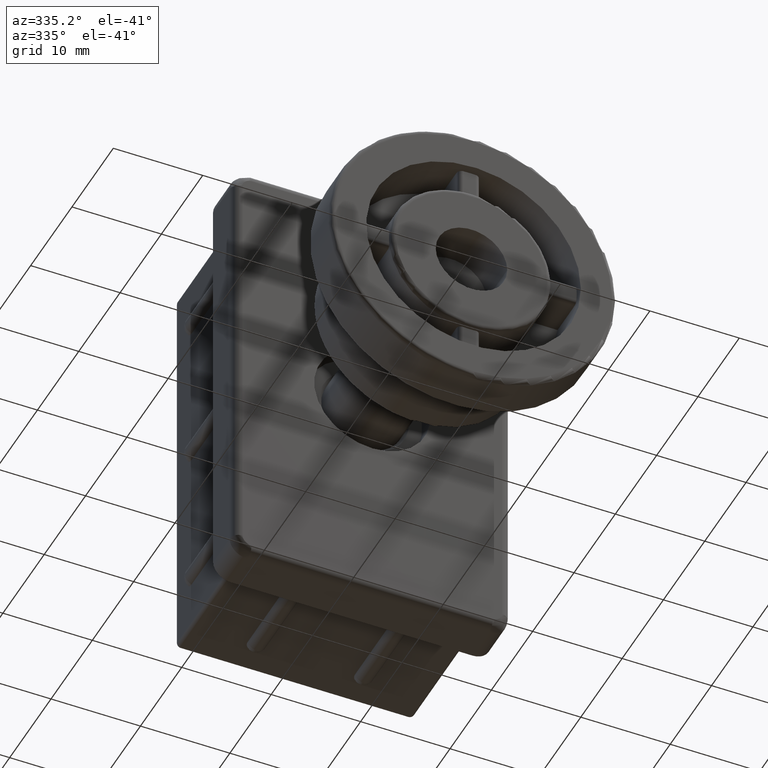
[diagram: clean part render]
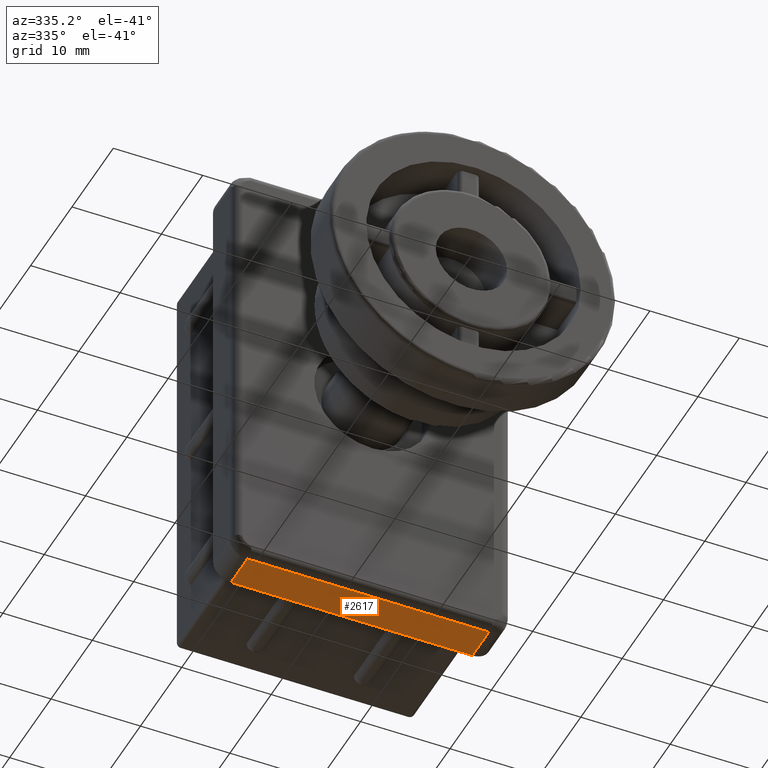
[diagram: same view with one face highlighted and labeled with its STEP entity id]
A machine part, auxiliary view. The second image highlights one B-rep face of the part: STEP entity #2617.
In plain terms, the highlighted planar face has unit normal (0, 0, -1).
Its self-contained STEP definition (entity closure, byte-faithful):
#234=PLANE('',#2865);
#361=FACE_OUTER_BOUND('',#531,.T.);
#531=EDGE_LOOP('',(#2202,#2203,#2204,#2205));
#747=LINE('',#4690,#963);
#754=LINE('',#4749,#970);
#756=LINE('',#4755,#972);
#759=LINE('',#4774,#975);
#963=VECTOR('',#3388,27.);
#970=VECTOR('',#3443,4.);
#972=VECTOR('',#3449,27.);
#975=VECTOR('',#3464,4.);
#1277=VERTEX_POINT('',#4687);
#1278=VERTEX_POINT('',#4689);
#1286=VERTEX_POINT('',#4740);
#1290=VERTEX_POINT('',#4753);
#1593=EDGE_CURVE('',#1278,#1277,#747,.T.);
#1620=EDGE_CURVE('',#1286,#1277,#754,.T.);
#1623=EDGE_CURVE('',#1290,#1286,#756,.T.);
#1629=EDGE_CURVE('',#1278,#1290,#759,.T.);
#2202=ORIENTED_EDGE('',*,*,#1620,.F.);
#2203=ORIENTED_EDGE('',*,*,#1623,.F.);
#2204=ORIENTED_EDGE('',*,*,#1629,.F.);
#2205=ORIENTED_EDGE('',*,*,#1593,.T.);
#2617=ADVANCED_FACE('',(#361),#234,.T.);
#2865=AXIS2_PLACEMENT_3D('',#4775,#3465,#3466);
#3388=DIRECTION('',(0.,0.,-1.));
#3443=DIRECTION('',(0.,-1.,0.));
#3449=DIRECTION('',(0.,0.,-1.));
#3464=DIRECTION('',(0.,1.,0.));
#3465=DIRECTION('center_axis',(1.,0.,0.));
#3466=DIRECTION('ref_axis',(0.,0.,-1.));
#4687=CARTESIAN_POINT('',(48.75,14.,-26.75));
#4689=CARTESIAN_POINT('',(48.75,14.,0.250000000000018));
#4690=CARTESIAN_POINT('',(48.75,14.,2.25000000000002));
#4740=CARTESIAN_POINT('',(48.75,18.,-26.75));
#4749=CARTESIAN_POINT('',(48.75,14.,-26.75));
#4753=CARTESIAN_POINT('',(48.75,18.,0.250000000000018));
#4755=CARTESIAN_POINT('',(48.75,18.,-5.49999999999999));
#4774=CARTESIAN_POINT('',(48.75,14.,0.250000000000018));
#4775=CARTESIAN_POINT('Origin',(48.75,14.,2.25000000000002));